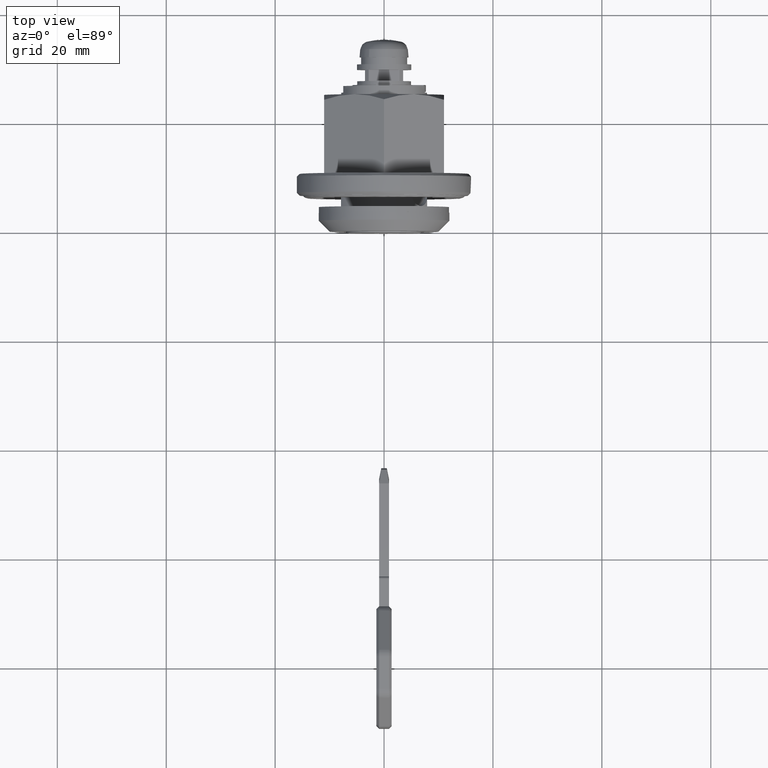
[diagram: clean part render]
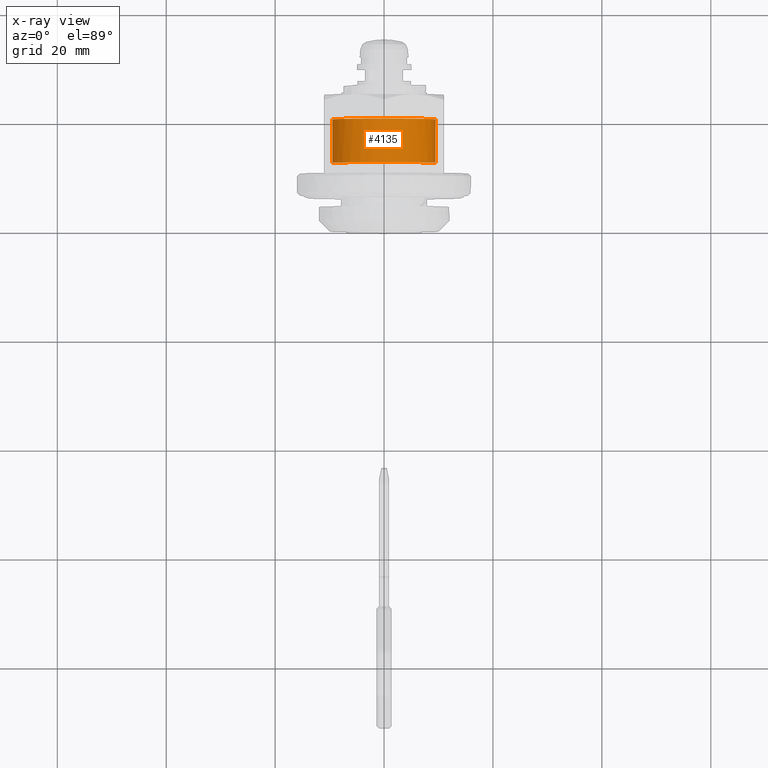
[diagram: x-ray — body ghosted, one internal face saturated and labeled with its STEP entity id]
A machine part, top view, then the same camera in x-ray: the body is ghosted and one INTERNAL B-rep face — a face not visible from any outside direction — is saturated and labeled: STEP entity #4135.
In plain terms, the highlighted face is a freeform B-spline surface patch.
Its self-contained STEP definition (entity closure, byte-faithful):
#3970=CARTESIAN_POINT('',(12.599999999990940,-9.426529031324666,-1.179216019962062));
#3971=VERTEX_POINT('',#3970);
#3985=CARTESIAN_POINT('',(20.599999999990750,-9.426529031329924,-1.179216019920046));
#3986=VERTEX_POINT('',#3985);
#3987=CARTESIAN_POINT('',(12.599999999990940,-9.426529031324666,-1.179216019962062));
#3988=CARTESIAN_POINT('',(20.599999999990750,-9.426529031329924,-1.179216019920046));
#3989=QUASI_UNIFORM_CURVE('',1,(#3987,#3988),.UNSPECIFIED.,.F.,.U.);
#3990=EDGE_CURVE('',#3971,#3986,#3989,.T.);
#4007=CARTESIAN_POINT('',(20.599999999990750,9.499638269108051,0.082902087354771));
#4008=VERTEX_POINT('',#4007);
#4024=CARTESIAN_POINT('',(12.599999999990940,9.499638269108210,0.082902087336509));
#4025=VERTEX_POINT('',#4024);
#4026=CARTESIAN_POINT('',(12.599999999990940,9.499638269108210,0.082902087336509));
#4027=CARTESIAN_POINT('',(20.599999999990750,9.499638269108051,0.082902087354771));
#4028=QUASI_UNIFORM_CURVE('',1,(#4026,#4027),.UNSPECIFIED.,.F.,.U.);
#4029=EDGE_CURVE('',#4025,#4008,#4028,.T.);
#4049=CARTESIAN_POINT('',(12.399999999990939,9.499638269109624,0.082902087174355));
#4050=CARTESIAN_POINT('',(12.399999999990943,9.416736181875072,9.582540356283980));
#4051=CARTESIAN_POINT('',(12.399999999990939,-0.082902087234552,9.499638269049427));
#4052=CARTESIAN_POINT('',(12.399999999990943,-9.582540356344177,9.416736181814875));
#4053=CARTESIAN_POINT('',(12.399999999990939,-9.499638269109624,-0.082902087294749));
#4054=CARTESIAN_POINT('',(12.399999999990943,-9.494836096972618,-0.633176510162846));
#4055=CARTESIAN_POINT('',(12.399999999990948,-9.426529031342616,-1.179216019818576));
#4056=CARTESIAN_POINT('',(20.804999999990748,9.499638269109624,0.082902087174355));
#4057=CARTESIAN_POINT('',(20.804999999990748,9.416736181875072,9.582540356283980));
#4058=CARTESIAN_POINT('',(20.804999999990748,-0.082902087234552,9.499638269049427));
#4059=CARTESIAN_POINT('',(20.804999999990748,-9.582540356344177,9.416736181814875));
#4060=CARTESIAN_POINT('',(20.804999999990748,-9.499638269109624,-0.082902087294749));
#4061=CARTESIAN_POINT('',(20.804999999990752,-9.494836096972618,-0.633176510162846));
#4062=CARTESIAN_POINT('',(20.804999999990756,-9.426529031342616,-1.179216019818576));
#4070=(BOUNDED_SURFACE()B_SPLINE_SURFACE(2,1,((#4049,#4056),(#4050,#4057),(#4051,#4058),(#4052,#4059),(#4053,#4060),(#4054,#4061),(#4055,#4062)),.UNSPECIFIED.,.F.,.F.,.U.)B_SPLINE_SURFACE_WITH_KNOTS((3,2,2,3),(2,2),(0.0,15.740115370177611,31.480230740355211,32.739439969969418),(0.0,8.404999999999808),.UNSPECIFIED.)GEOMETRIC_REPRESENTATION_ITEM()RATIONAL_B_SPLINE_SURFACE(((1.0,1.0),(0.707106781186548,0.707106781186548),(1.0,1.0),(0.707106781186548,0.707106781186548),(1.0,1.0),(0.976568542494924,0.976568542494924),(0.956886118190660,0.956886118190660)))REPRESENTATION_ITEM('')SURFACE());
#4071=CARTESIAN_POINT('',(12.599999999990940,0.0,9.499999999939803));
#4072=VERTEX_POINT('',#4071);
#4073=CARTESIAN_POINT('',(12.599999999990946,-9.426529031324666,-1.179216019962062));
#4074=CARTESIAN_POINT('',(12.599999999990938,-9.500000000000000,-0.591896811773560));
#4075=CARTESIAN_POINT('',(12.599999999990940,-9.500000000000000,-6.019718E-011));
#4076=CARTESIAN_POINT('',(12.599999999990940,-9.500000000000000,9.499999999939805));
#4077=CARTESIAN_POINT('',(12.599999999990940,0.0,9.499999999939803));
#4085=(BOUNDED_CURVE()B_SPLINE_CURVE(2,(#4073,#4074,#4075,#4076,#4077),.UNSPECIFIED.,.F.,.U.)B_SPLINE_CURVE_WITH_KNOTS((3,2,3),(0.728526071024165,0.750000000000000,1.0),.UNSPECIFIED.)CURVE()GEOMETRIC_REPRESENTATION_ITEM()RATIONAL_B_SPLINE_CURVE((0.954005430264755,0.974841727286785,1.0,0.707106781186548,1.0))REPRESENTATION_ITEM(''));
#4086=EDGE_CURVE('',#3971,#4072,#4085,.T.);
#4087=ORIENTED_EDGE('',*,*,#4086,.T.);
#4088=CARTESIAN_POINT('',(12.599999999990940,0.0,9.499999999939803));
#4089=CARTESIAN_POINT('',(12.599999999990942,9.417456500330781,9.499999999939803));
#4090=CARTESIAN_POINT('',(12.599999999990940,9.499638269108210,0.082902087336509));
#4098=(BOUNDED_CURVE()B_SPLINE_CURVE(2,(#4088,#4089,#4090),.UNSPECIFIED.,.F.,.U.)B_SPLINE_CURVE_WITH_KNOTS((3,3),(0.0,0.248460105659000),.UNSPECIFIED.)CURVE()GEOMETRIC_REPRESENTATION_ITEM()RATIONAL_B_SPLINE_CURVE((1.0,0.708910879627220,0.996414028086489))REPRESENTATION_ITEM(''));
#4099=EDGE_CURVE('',#4072,#4025,#4098,.T.);
#4100=ORIENTED_EDGE('',*,*,#4099,.T.);
#4101=ORIENTED_EDGE('',*,*,#4029,.T.);
#4102=CARTESIAN_POINT('',(20.599999999990750,0.0,9.499999999939803));
#4103=VERTEX_POINT('',#4102);
#4104=CARTESIAN_POINT('',(20.599999999990750,9.499638269108051,0.082902087354771));
#4105=CARTESIAN_POINT('',(20.599999999990750,9.417456500294570,9.499999999939805));
#4106=CARTESIAN_POINT('',(20.599999999990750,0.0,9.499999999939803));
#4114=(BOUNDED_CURVE()B_SPLINE_CURVE(2,(#4104,#4105,#4106),.UNSPECIFIED.,.F.,.U.)B_SPLINE_CURVE_WITH_KNOTS((3,3),(0.751539894341678,1.0),.UNSPECIFIED.)CURVE()GEOMETRIC_REPRESENTATION_ITEM()RATIONAL_B_SPLINE_CURVE((0.996414028084922,0.708910879628014,1.0))REPRESENTATION_ITEM(''));
#4115=EDGE_CURVE('',#4008,#4103,#4114,.T.);
#4116=ORIENTED_EDGE('',*,*,#4115,.T.);
#4117=CARTESIAN_POINT('',(20.599999999990750,0.0,9.499999999939803));
#4118=CARTESIAN_POINT('',(20.599999999990750,-9.500000000000000,9.499999999939805));
#4119=CARTESIAN_POINT('',(20.599999999990750,-9.500000000000000,-6.019718E-011));
#4120=CARTESIAN_POINT('',(20.599999999990750,-9.500000000000002,-0.591896811731050));
#4121=CARTESIAN_POINT('',(20.599999999990754,-9.426529031329924,-1.179216019920046));
#4129=(BOUNDED_CURVE()B_SPLINE_CURVE(2,(#4117,#4118,#4119,#4120,#4121),.UNSPECIFIED.,.F.,.U.)B_SPLINE_CURVE_WITH_KNOTS((3,2,3),(0.0,0.250000000000000,0.271473928974332),.UNSPECIFIED.)CURVE()GEOMETRIC_REPRESENTATION_ITEM()RATIONAL_B_SPLINE_CURVE((1.0,0.707106781186548,1.0,0.974841727288546,0.954005430267673))REPRESENTATION_ITEM(''));
#4130=EDGE_CURVE('',#4103,#3986,#4129,.T.);
#4131=ORIENTED_EDGE('',*,*,#4130,.T.);
#4132=ORIENTED_EDGE('',*,*,#3990,.F.);
#4133=EDGE_LOOP('',(#4087,#4100,#4101,#4116,#4131,#4132));
#4134=FACE_OUTER_BOUND('',#4133,.T.);
#4135=ADVANCED_FACE('',(#4134),#4070,.F.);